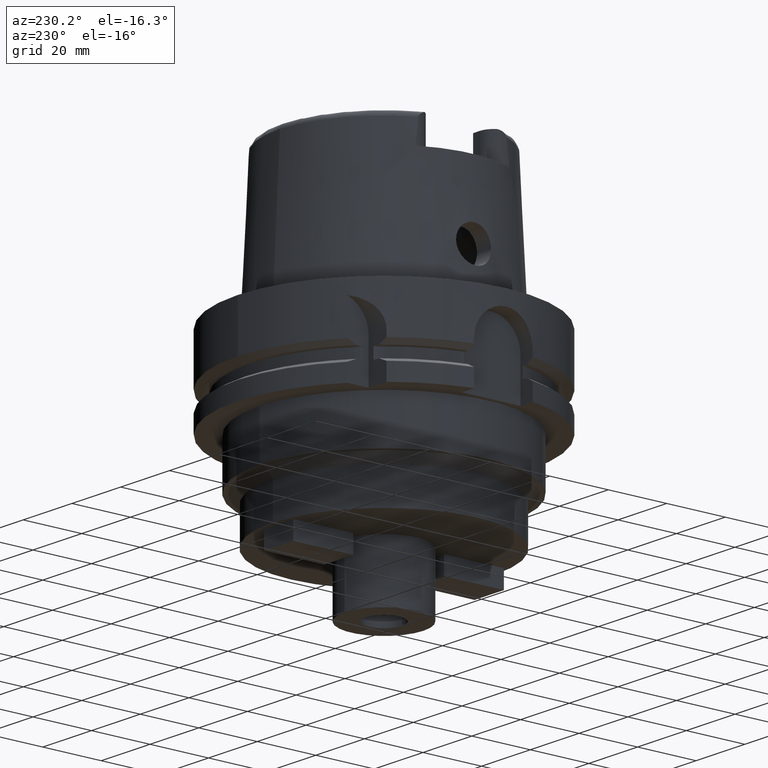
[diagram: clean part render]
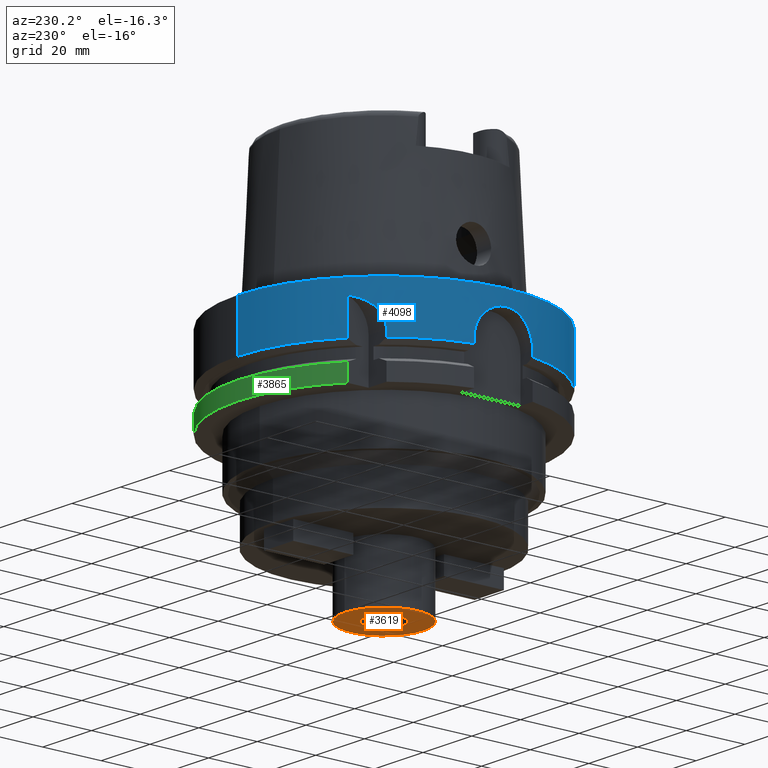
[diagram: same view with three faces highlighted in distinct colors, each labeled with its STEP entity id]
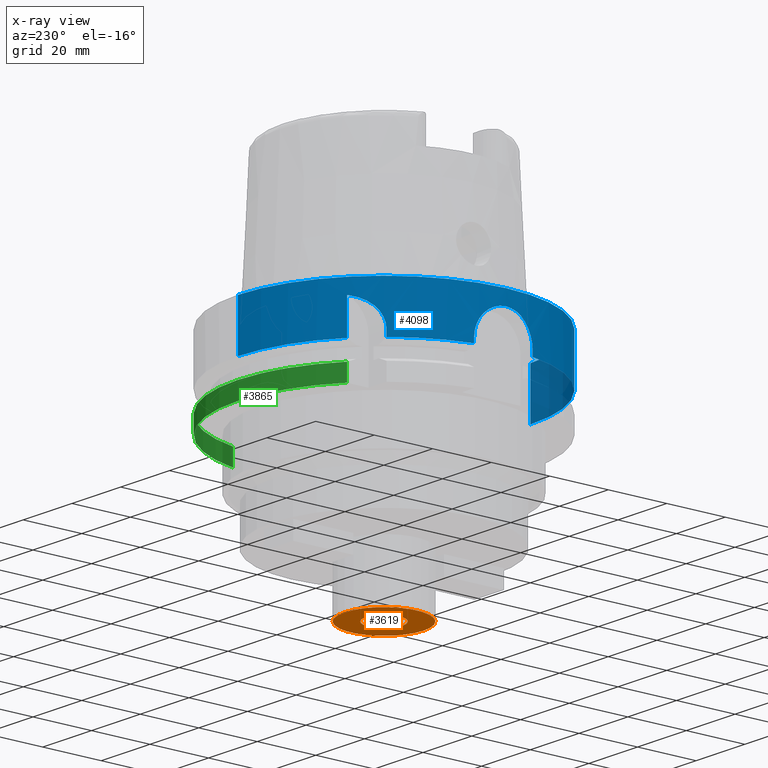
[diagram: x-ray of the same camera — body ghosted, the three highlighted faces saturated]
A machine part, auxiliary view with three faces highlighted in distinct colors.
The next image is the same camera in x-ray (body ghosted, the three faces saturated) — at least one of them is partly hidden behind the body in this view.
Their STEP definitions:

[orange] entity #3619 — the highlighted planar face has unit normal (0, 0, 1).
#1093=CARTESIAN_POINT('',(0.E0,0.E0,-8.E1));
#1094=DIRECTION('',(0.E0,0.E0,1.E0));
#1095=DIRECTION('',(0.E0,-1.E0,0.E0));
#1096=AXIS2_PLACEMENT_3D('',#1093,#1094,#1095);
#1101=CARTESIAN_POINT('',(0.E0,0.E0,-8.E1));
#1102=DIRECTION('',(0.E0,0.E0,1.E0));
#1103=DIRECTION('',(0.E0,1.E0,0.E0));
#1104=AXIS2_PLACEMENT_3D('',#1101,#1102,#1103);
#1109=CARTESIAN_POINT('',(0.E0,0.E0,-8.E1));
#1110=DIRECTION('',(0.E0,0.E0,-1.E0));
#1111=DIRECTION('',(0.E0,-1.E0,0.E0));
#1112=AXIS2_PLACEMENT_3D('',#1109,#1110,#1111);
#1117=CARTESIAN_POINT('',(0.E0,0.E0,-8.E1));
#1118=DIRECTION('',(0.E0,0.E0,-1.E0));
#1119=DIRECTION('',(0.E0,1.E0,0.E0));
#1120=AXIS2_PLACEMENT_3D('',#1117,#1118,#1119);
#2613=CARTESIAN_POINT('',(0.E0,6.25E0,-8.E1));
#2614=VERTEX_POINT('',#2613);
#2615=CARTESIAN_POINT('',(0.E0,-6.25E0,-8.E1));
#2616=VERTEX_POINT('',#2615);
#2617=CARTESIAN_POINT('',(0.E0,-1.35E1,-8.E1));
#2618=CARTESIAN_POINT('',(0.E0,1.35E1,-8.E1));
#2619=VERTEX_POINT('',#2617);
#2620=VERTEX_POINT('',#2618);
#3604=CARTESIAN_POINT('',(0.E0,0.E0,-8.E1));
#3605=DIRECTION('',(0.E0,0.E0,1.E0));
#3606=DIRECTION('',(0.E0,1.E0,0.E0));
#3607=AXIS2_PLACEMENT_3D('',#3604,#3605,#3606);
#3608=PLANE('',#3607);
#3610=ORIENTED_EDGE('',*,*,#3609,.T.);
#3612=ORIENTED_EDGE('',*,*,#3611,.T.);
#3613=EDGE_LOOP('',(#3610,#3612));
#3614=FACE_OUTER_BOUND('',#3613,.F.);
#3615=ORIENTED_EDGE('',*,*,#3597,.T.);
#3616=ORIENTED_EDGE('',*,*,#3586,.T.);
#3617=EDGE_LOOP('',(#3615,#3616));
#3618=FACE_BOUND('',#3617,.F.);
#1097=CIRCLE('',#1096,1.35E1);
#1105=CIRCLE('',#1104,1.35E1);
#1113=CIRCLE('',#1112,6.25E0);
#1121=CIRCLE('',#1120,6.25E0);
#3586=EDGE_CURVE('',#2614,#2616,#1121,.T.);
#3597=EDGE_CURVE('',#2616,#2614,#1113,.T.);
#3609=EDGE_CURVE('',#2619,#2620,#1097,.T.);
#3611=EDGE_CURVE('',#2620,#2619,#1105,.T.);
#3619=ADVANCED_FACE('',(#3614,#3618),#3608,.F.);

[blue] entity #4098 — the highlighted cylindrical surface (partial cylindrical patch) has radius 50 mm, axis along (0, 0, 1).
#1385=CARTESIAN_POINT('',(-3.150000355959E1,3.882975374305E1,
-1.675239179145E1));
#1570=CARTESIAN_POINT('',(-3.882975730068E1,3.149999917413E1,
-1.675240773890E1));
#1594=DIRECTION('',(-3.028823767049E-7,-2.457085509676E-7,-9.999999999999E-1));
#1595=VECTOR('',#1594,1.175239179145E1);
#1596=CARTESIAN_POINT('',(-3.15E1,3.882975663071E1,-5.000000000003E0));
#1597=LINE('',#1596,#1595);
#1601=DIRECTION('',(0.E0,2.969006079282E-14,-1.E0));
#1602=VECTOR('',#1601,1.675240473581E1);
#1603=CARTESIAN_POINT('',(0.E0,-5.E1,1.421085471520E-14));
#1604=LINE('',#1603,#1602);
#1608=DIRECTION('',(3.933032361779E-13,-2.534170336198E-14,1.E0));
#1609=VECTOR('',#1608,1.752404735809E0);
#1610=CARTESIAN_POINT('',(-4.898979485566E1,-1.E1,-1.675240473581E1));
#1611=LINE('',#1610,#1609);
#1615=DIRECTION('',(-4.014125812538E-13,-2.635537149646E-14,-1.E0));
#1616=VECTOR('',#1615,1.752404735809E0);
#1617=CARTESIAN_POINT('',(-4.898979485566E1,1.E1,-1.5E1));
#1618=LINE('',#1617,#1616);
#1622=DIRECTION('',(3.166955095345E-7,3.903884141555E-7,9.999999999999E-1));
#1623=VECTOR('',#1622,2.115509879686E0);
#1624=CARTESIAN_POINT('',(-3.882975730068E1,3.149999917413E1,
-1.675240773890E1));
#1625=LINE('',#1624,#1623);
#1629=CARTESIAN_POINT('',(-3.882975663071E1,3.15E1,-1.463689785921E1));
#1630=CARTESIAN_POINT('',(-3.882975663071E1,3.15E1,-1.433079442757E1));
#1631=CARTESIAN_POINT('',(-3.880703948757E1,3.152803350674E1,
-1.372060056212E1));
#1632=CARTESIAN_POINT('',(-3.870463853777E1,3.165384714523E1,
-1.281016680485E1));
#1633=CARTESIAN_POINT('',(-3.853158041854E1,3.186459493738E1,
-1.190813577803E1));
#1634=CARTESIAN_POINT('',(-3.828600997477E1,3.215968973631E1,
-1.102421636220E1));
#1635=CARTESIAN_POINT('',(-3.796264251479E1,3.254137731539E1,
-1.015979586222E1));
#1636=CARTESIAN_POINT('',(-3.755690159807E1,3.300958649178E1,
-9.324337731077E0));
#1637=CARTESIAN_POINT('',(-3.706128139825E1,3.356605157807E1,
-8.523263853096E0));
#1638=CARTESIAN_POINT('',(-3.646570000995E1,3.421332203184E1,
-7.763500792123E0));
#1639=CARTESIAN_POINT('',(-3.576097331126E1,3.495068446874E1,
-7.056437394338E0));
#1640=CARTESIAN_POINT('',(-3.493261923192E1,3.578035928026E1,
-6.411004573516E0));
#1641=CARTESIAN_POINT('',(-3.396440740978E1,3.670274587993E1,
-5.839694638991E0));
#1642=CARTESIAN_POINT('',(-3.283921796572E1,3.771535304874E1,
-5.357256161125E0));
#1643=CARTESIAN_POINT('',(-3.196774339688E1,3.845030751024E1,
-5.105139798383E0));
#1644=CARTESIAN_POINT('',(-3.15E1,3.882975663071E1,-5.000000000003E0));
#1667=CARTESIAN_POINT('',(0.E0,0.E0,-1.675240473581E1));
#1668=DIRECTION('',(0.E0,0.E0,1.E0));
#1669=DIRECTION('',(0.E0,1.E0,0.E0));
#1670=AXIS2_PLACEMENT_3D('',#1667,#1668,#1669);
#1825=DIRECTION('',(0.E0,-2.969006079282E-14,-1.E0));
#1826=VECTOR('',#1825,1.675240473581E1);
#1827=CARTESIAN_POINT('',(0.E0,5.E1,1.421085471520E-14));
#1828=LINE('',#1827,#1826);
#1900=CARTESIAN_POINT('',(0.E0,0.E0,-1.675240473581E1));
#1901=DIRECTION('',(0.E0,0.E0,1.E0));
#1902=DIRECTION('',(-9.797958971133E-1,-2.E-1,0.E0));
#1903=AXIS2_PLACEMENT_3D('',#1900,#1901,#1902);
#2054=CARTESIAN_POINT('',(0.E0,0.E0,1.421085471520E-14));
#2055=DIRECTION('',(0.E0,0.E0,-1.E0));
#2056=DIRECTION('',(0.E0,-1.E0,0.E0));
#2057=AXIS2_PLACEMENT_3D('',#2054,#2055,#2056);
#2086=CARTESIAN_POINT('',(-4.898979485566E1,1.E1,-1.5E1));
#2087=CARTESIAN_POINT('',(-4.898979485566E1,1.E1,-1.430993889815E1));
#2088=CARTESIAN_POINT('',(-4.901946880322E1,9.856614401941E0,
-1.292530789486E1));
#2089=CARTESIAN_POINT('',(-4.914637875974E1,9.212549070307E0,
-1.092502393632E1));
#2090=CARTESIAN_POINT('',(-4.933511999010E1,8.159236782102E0,
-9.090510304616E0));
#2091=CARTESIAN_POINT('',(-4.955239631147E1,6.738320460330E0,
-7.510320278869E0));
#2092=CARTESIAN_POINT('',(-4.975872816102E1,5.020257999839E0,
-6.265963787663E0));
#2093=CARTESIAN_POINT('',(-4.991769264617E1,3.092336683994E0,
-5.413414007501E0));
#2094=CARTESIAN_POINT('',(-5.000353405534E1,1.043155388557E0,
-4.981927014164E0));
#2095=CARTESIAN_POINT('',(-5.000349577147E1,-1.045120539047E0,
-4.982135238240E0));
#2096=CARTESIAN_POINT('',(-4.991757792575E1,-3.094155253353E0,
-5.414004118812E0));
#2097=CARTESIAN_POINT('',(-4.975855896068E1,-5.021932562016E0,
-6.266919569864E0));
#2098=CARTESIAN_POINT('',(-4.955219468294E1,-6.739788123466E0,
-7.511650264879E0));
#2099=CARTESIAN_POINT('',(-4.933493542372E1,-8.160331074224E0,
-9.092009858472E0));
#2100=CARTESIAN_POINT('',(-4.914621822008E1,-9.213411506026E0,
-1.092695518457E1));
#2101=CARTESIAN_POINT('',(-4.901940093105E1,-9.856902576003E0,
-1.292700389553E1));
#2102=CARTESIAN_POINT('',(-4.898979485566E1,-1.E1,-1.431061582794E1));
#2103=CARTESIAN_POINT('',(-4.898979485566E1,-1.E1,-1.5E1));
#2122=CARTESIAN_POINT('',(0.E0,0.E0,-1.675240473581E1));
#2123=DIRECTION('',(0.E0,0.E0,1.E0));
#2124=DIRECTION('',(-7.765951326142E-1,6.3E-1,0.E0));
#2125=AXIS2_PLACEMENT_3D('',#2122,#2123,#2124);
#2130=CARTESIAN_POINT('',(-4.898979485566E1,1.E1,-1.675240473581E1));
#2696=VERTEX_POINT('',#1385);
#2697=CARTESIAN_POINT('',(-3.15E1,3.882975663071E1,-5.000000000003E0));
#2698=VERTEX_POINT('',#2697);
#2717=CARTESIAN_POINT('',(-4.898979485566E1,-1.E1,-1.5E1));
#2718=VERTEX_POINT('',#2717);
#2719=CARTESIAN_POINT('',(-4.898979485566E1,-1.E1,-1.675240473581E1));
#2720=VERTEX_POINT('',#2719);
#2739=VERTEX_POINT('',#2130);
#2740=CARTESIAN_POINT('',(-4.898979485566E1,1.E1,-1.5E1));
#2741=VERTEX_POINT('',#2740);
#2780=CARTESIAN_POINT('',(0.E0,-5.E1,-1.675240473581E1));
#2781=VERTEX_POINT('',#2780);
#2785=CARTESIAN_POINT('',(1.065814103640E-14,5.E1,-1.675240473581E1));
#2786=VERTEX_POINT('',#2785);
#2787=VERTEX_POINT('',#1570);
#2788=CARTESIAN_POINT('',(0.E0,5.E1,1.421085471520E-14));
#2789=VERTEX_POINT('',#2788);
#2790=CARTESIAN_POINT('',(0.E0,-5.E1,1.421085471520E-14));
#2791=VERTEX_POINT('',#2790);
#2792=CARTESIAN_POINT('',(-3.882975663071E1,3.15E1,-1.463689785921E1));
#2793=VERTEX_POINT('',#2792);
#4072=CARTESIAN_POINT('',(0.E0,0.E0,-8.65E1));
#4073=DIRECTION('',(0.E0,0.E0,1.E0));
#4074=DIRECTION('',(0.E0,1.E0,0.E0));
#4075=AXIS2_PLACEMENT_3D('',#4072,#4073,#4074);
#4076=CYLINDRICAL_SURFACE('',#4075,5.E1);
#4077=ORIENTED_EDGE('',*,*,#3840,.T.);
#4079=ORIENTED_EDGE('',*,*,#4078,.F.);
#4081=ORIENTED_EDGE('',*,*,#4080,.F.);
#4083=ORIENTED_EDGE('',*,*,#4082,.F.);
#4085=ORIENTED_EDGE('',*,*,#4084,.T.);
#4087=ORIENTED_EDGE('',*,*,#4086,.F.);
#4088=ORIENTED_EDGE('',*,*,#3963,.T.);
#4090=ORIENTED_EDGE('',*,*,#4089,.F.);
#4091=ORIENTED_EDGE('',*,*,#4013,.T.);
#4093=ORIENTED_EDGE('',*,*,#4092,.F.);
#4094=ORIENTED_EDGE('',*,*,#4044,.T.);
#4095=ORIENTED_EDGE('',*,*,#4065,.T.);
#4096=EDGE_LOOP('',(#4077,#4079,#4081,#4083,#4085,#4087,#4088,#4090,#4091,#4093,
#4094,#4095));
#4097=FACE_OUTER_BOUND('',#4096,.F.);
#1645=B_SPLINE_CURVE_WITH_KNOTS('',3,(#1629,#1630,#1631,#1632,#1633,#1634,#1635,
#1636,#1637,#1638,#1639,#1640,#1641,#1642,#1643,#1644),.UNSPECIFIED.,.F.,.F.,(4,
1,1,1,1,1,1,1,1,1,1,1,1,4),(0.E0,7.692307692308E-2,1.538461538462E-1,
2.307692307692E-1,3.076923076923E-1,3.846153846154E-1,4.615384615385E-1,
5.384615384615E-1,6.153846153846E-1,6.923076923077E-1,7.692307692308E-1,
8.461538461538E-1,9.230769230769E-1,1.E0),.UNSPECIFIED.);
#1671=CIRCLE('',#1670,5.E1);
#1904=CIRCLE('',#1903,5.E1);
#2058=CIRCLE('',#2057,5.E1);
#2104=B_SPLINE_CURVE_WITH_KNOTS('',3,(#2086,#2087,#2088,#2089,#2090,#2091,#2092,
#2093,#2094,#2095,#2096,#2097,#2098,#2099,#2100,#2101,#2102,#2103),
.UNSPECIFIED.,.F.,.F.,(4,1,1,1,1,1,1,1,1,1,1,1,1,1,1,4),(0.E0,6.666666666667E-2,
1.333333333333E-1,2.E-1,2.666666666667E-1,3.333333333333E-1,4.E-1,
4.666666666667E-1,5.333333333333E-1,6.E-1,6.666666666667E-1,7.333333333333E-1,
8.E-1,8.666666666667E-1,9.333333333333E-1,1.E0),.UNSPECIFIED.);
#2126=CIRCLE('',#2125,5.E1);
#3840=EDGE_CURVE('',#2698,#2696,#1597,.T.);
#3963=EDGE_CURVE('',#2720,#2718,#1611,.T.);
#4013=EDGE_CURVE('',#2741,#2739,#1618,.T.);
#4044=EDGE_CURVE('',#2787,#2793,#1625,.T.);
#4065=EDGE_CURVE('',#2793,#2698,#1645,.T.);
#4078=EDGE_CURVE('',#2786,#2696,#1671,.T.);
#4080=EDGE_CURVE('',#2789,#2786,#1828,.T.);
#4082=EDGE_CURVE('',#2791,#2789,#2058,.T.);
#4084=EDGE_CURVE('',#2791,#2781,#1604,.T.);
#4086=EDGE_CURVE('',#2720,#2781,#1904,.T.);
#4089=EDGE_CURVE('',#2741,#2718,#2104,.T.);
#4092=EDGE_CURVE('',#2787,#2739,#2126,.T.);
#4098=ADVANCED_FACE('',(#4097),#4076,.T.);

[green] entity #3865 — the highlighted cylindrical surface (partial cylindrical patch) has radius 50 mm, axis along (0, 0, 1).
#1334=CARTESIAN_POINT('',(0.E0,0.E0,-2.9E1));
#1335=DIRECTION('',(0.E0,0.E0,1.E0));
#1336=DIRECTION('',(9.754998718606E-1,2.2E-1,0.E0));
#1337=AXIS2_PLACEMENT_3D('',#1334,#1335,#1336);
#1342=CARTESIAN_POINT('',(0.E0,0.E0,-2.9E1));
#1343=DIRECTION('',(0.E0,0.E0,1.E0));
#1344=DIRECTION('',(0.E0,1.E0,0.E0));
#1345=AXIS2_PLACEMENT_3D('',#1342,#1343,#1344);
#1398=DIRECTION('',(6.188494047475E-7,5.020316378014E-7,-9.999999999997E-1));
#1399=VECTOR('',#1398,5.752391791881E0);
#1400=CARTESIAN_POINT('',(-3.150000355986E1,3.882975374283E1,
-2.324760820812E1));
#1401=LINE('',#1400,#1399);
#1405=DIRECTION('',(-8.399427413532E-14,-2.068976605539E-14,1.E0));
#1406=VECTOR('',#1405,5.752404735809E0);
#1407=CARTESIAN_POINT('',(4.877499359303E1,1.1E1,-2.9E1));
#1408=LINE('',#1407,#1406);
#1777=CARTESIAN_POINT('',(0.E0,0.E0,-2.324759526419E1));
#1778=DIRECTION('',(0.E0,0.E0,-1.E0));
#1779=DIRECTION('',(-6.3E-1,7.765951326142E-1,0.E0));
#1780=AXIS2_PLACEMENT_3D('',#1777,#1778,#1779);
#1785=CARTESIAN_POINT('',(0.E0,0.E0,-2.324759526419E1));
#1786=DIRECTION('',(0.E0,0.E0,-1.E0));
#1787=DIRECTION('',(0.E0,1.E0,0.E0));
#1788=AXIS2_PLACEMENT_3D('',#1785,#1786,#1787);
#2662=CARTESIAN_POINT('',(-3.15E1,3.882975663071E1,-2.9E1));
#2664=VERTEX_POINT('',#2662);
#2683=CARTESIAN_POINT('',(4.877499359303E1,1.1E1,-2.9E1));
#2684=VERTEX_POINT('',#2683);
#2685=CARTESIAN_POINT('',(-6.291890632826E-14,5.E1,-2.9E1));
#2686=VERTEX_POINT('',#2685);
#2687=CARTESIAN_POINT('',(-3.150000355986E1,3.882975374283E1,
-2.324760820812E1));
#2688=VERTEX_POINT('',#2687);
#2707=CARTESIAN_POINT('',(4.877499359303E1,1.1E1,-2.324759526419E1));
#2708=VERTEX_POINT('',#2707);
#2709=CARTESIAN_POINT('',(0.E0,5.E1,-2.324759526419E1));
#2710=VERTEX_POINT('',#2709);
#3849=CARTESIAN_POINT('',(0.E0,0.E0,-8.65E1));
#3850=DIRECTION('',(0.E0,0.E0,1.E0));
#3851=DIRECTION('',(0.E0,1.E0,0.E0));
#3852=AXIS2_PLACEMENT_3D('',#3849,#3850,#3851);
#3853=CYLINDRICAL_SURFACE('',#3852,5.E1);
#3854=ORIENTED_EDGE('',*,*,#3828,.T.);
#3855=ORIENTED_EDGE('',*,*,#3813,.F.);
#3856=ORIENTED_EDGE('',*,*,#3811,.F.);
#3858=ORIENTED_EDGE('',*,*,#3857,.T.);
#3860=ORIENTED_EDGE('',*,*,#3859,.F.);
#3862=ORIENTED_EDGE('',*,*,#3861,.F.);
#3863=EDGE_LOOP('',(#3854,#3855,#3856,#3858,#3860,#3862));
#3864=FACE_OUTER_BOUND('',#3863,.F.);
#1338=CIRCLE('',#1337,5.E1);
#1346=CIRCLE('',#1345,5.E1);
#1781=CIRCLE('',#1780,5.E1);
#1789=CIRCLE('',#1788,5.E1);
#3811=EDGE_CURVE('',#2684,#2686,#1338,.T.);
#3813=EDGE_CURVE('',#2686,#2664,#1346,.T.);
#3828=EDGE_CURVE('',#2688,#2664,#1401,.T.);
#3857=EDGE_CURVE('',#2684,#2708,#1408,.T.);
#3859=EDGE_CURVE('',#2710,#2708,#1789,.T.);
#3861=EDGE_CURVE('',#2688,#2710,#1781,.T.);
#3865=ADVANCED_FACE('',(#3864),#3853,.T.);